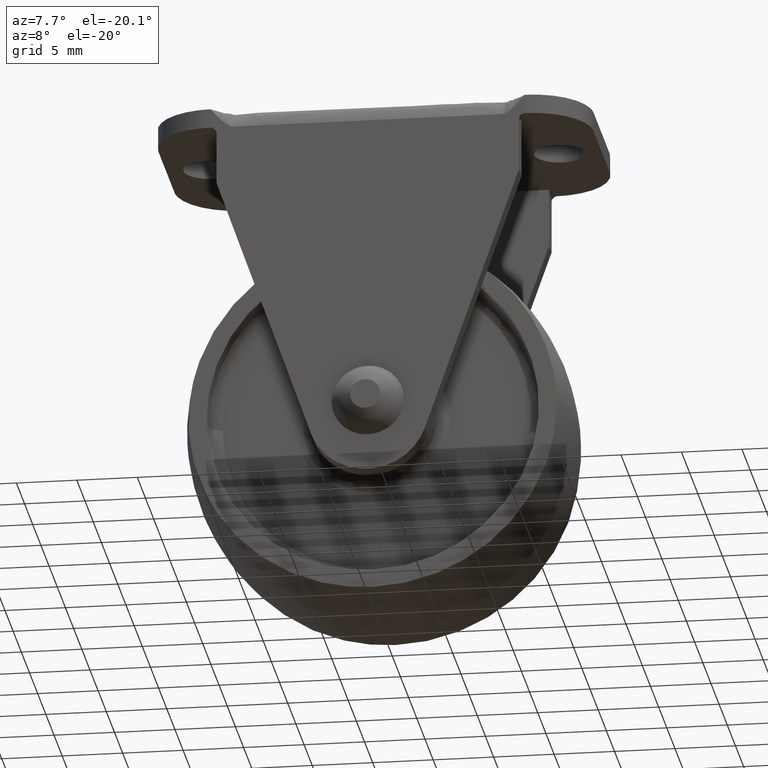
[diagram: clean part render]
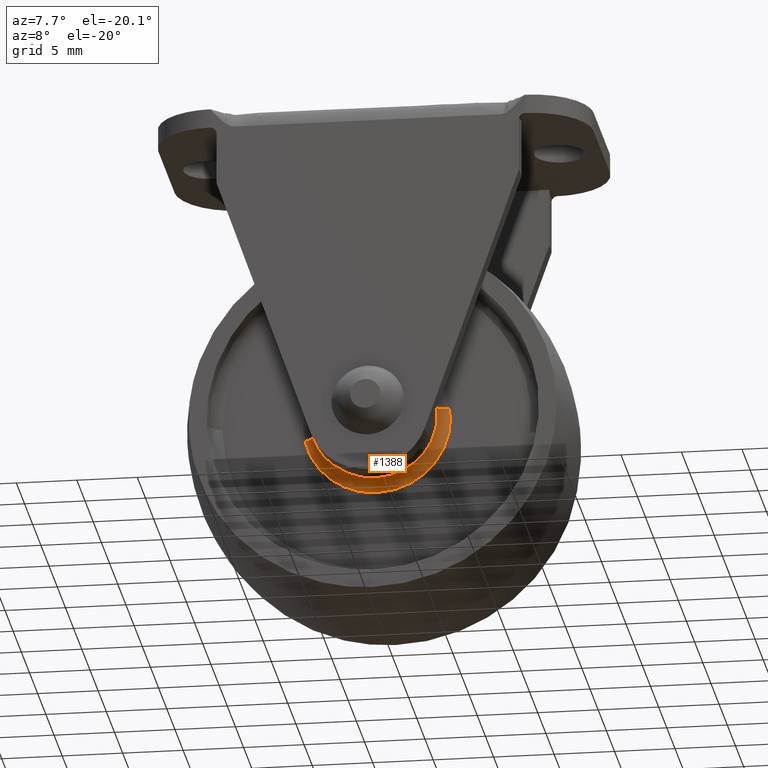
[diagram: same view with one face highlighted and labeled with its STEP entity id]
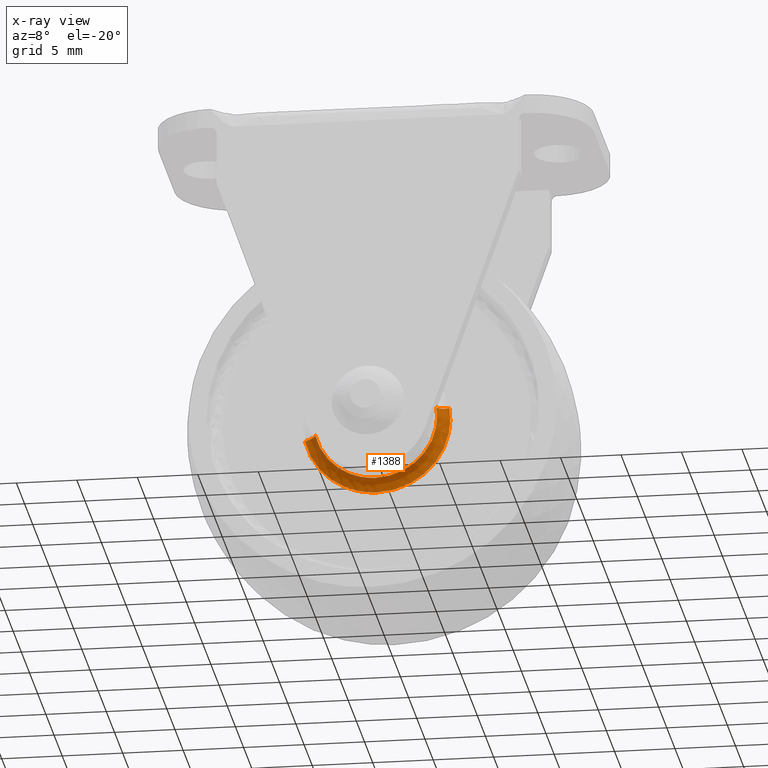
[diagram: x-ray of the same camera — body ghosted, the highlighted face saturated]
A machine part, auxiliary view. The second image highlights one B-rep face of the part: STEP entity #1388.
The next image is the same camera in x-ray: the body ghosted, the highlighted face saturated — about 0% of this face is hidden behind the body in this view.
In plain terms, the highlighted face is a freeform B-spline surface patch.
Its self-contained STEP definition (entity closure, byte-faithful):
#122=CARTESIAN_POINT('',(-4.978266226007286,-5.325867675919231,-1.116302329533333));
#123=VERTEX_POINT('',#122);
#139=CARTESIAN_POINT('',(0.0,-5.325867676252700,-5.101888425605239));
#140=VERTEX_POINT('',#139);
#141=CARTESIAN_POINT('',(-4.978266226007286,-5.325867675919231,-1.116302329533333));
#142=CARTESIAN_POINT('',(-4.084557685298582,-5.325867676252699,-5.101888425605239));
#143=CARTESIAN_POINT('',(0.0,-5.325867676252700,-5.101888425605239));
#151=(BOUNDED_CURVE()B_SPLINE_CURVE(2,(#141,#142,#143),.UNSPECIFIED.,.F.,.U.)B_SPLINE_CURVE_WITH_KNOTS((3,3),(0.787436176726072,1.0),.UNSPECIFIED.)CURVE()GEOMETRIC_REPRESENTATION_ITEM()RATIONAL_B_SPLINE_CURVE((0.925416950444107,0.750965990392022,1.0))REPRESENTATION_ITEM(''));
#152=EDGE_CURVE('',#123,#140,#151,.T.);
#154=CARTESIAN_POINT('',(4.008179143168089,-5.325867676252408,-3.156543277637351));
#155=VERTEX_POINT('',#154);
#156=CARTESIAN_POINT('',(0.0,-5.325867676252700,-5.101888425605239));
#157=CARTESIAN_POINT('',(2.476170235838100,-5.325867676252700,-5.101888425605241));
#158=CARTESIAN_POINT('',(4.008179143168089,-5.325867676252408,-3.156543277637351));
#166=(BOUNDED_CURVE()B_SPLINE_CURVE(2,(#156,#157,#158),.UNSPECIFIED.,.F.,.U.)B_SPLINE_CURVE_WITH_KNOTS((3,3),(0.0,0.142872459110285),.UNSPECIFIED.)CURVE()GEOMETRIC_REPRESENTATION_ITEM()RATIONAL_B_SPLINE_CURVE((1.0,0.832614502285582,0.856547225994026))REPRESENTATION_ITEM(''));
#167=EDGE_CURVE('',#140,#155,#166,.T.);
#213=CARTESIAN_POINT('',(5.033961598497758,-5.325867676014894,0.829756670719595));
#214=VERTEX_POINT('',#213);
#215=CARTESIAN_POINT('',(4.008179143168089,-5.325867676252408,-3.156543277637351));
#216=CARTESIAN_POINT('',(5.101888425605240,-5.325867676252701,-1.767751061288650));
#217=CARTESIAN_POINT('',(5.101888425605240,-5.325867676252700,8.173480E-016));
#218=CARTESIAN_POINT('',(5.101888425605241,-5.325867676252700,0.417658700996241));
#219=CARTESIAN_POINT('',(5.033961598497758,-5.325867676014894,0.829756670719595));
#227=(BOUNDED_CURVE()B_SPLINE_CURVE(2,(#215,#216,#217,#218,#219),.UNSPECIFIED.,.F.,.U.)B_SPLINE_CURVE_WITH_KNOTS((3,2,3),(0.142872459110285,0.250000000000000,0.277993891202610),.UNSPECIFIED.)CURVE()GEOMETRIC_REPRESENTATION_ITEM()RATIONAL_B_SPLINE_CURVE((0.856547225994026,0.874492278900966,1.0,0.967203116394216,0.941751131919991))REPRESENTATION_ITEM(''));
#228=EDGE_CURVE('',#155,#214,#227,.T.);
#1300=CARTESIAN_POINT('',(-4.969428981095087,-5.388629516085768,-1.114320708445350));
#1301=CARTESIAN_POINT('',(-3.917116386922050,-5.388629516085768,-5.807218061085107));
#1302=CARTESIAN_POINT('',(0.828283715530619,-5.388629516085767,-5.025025485109969));
#1303=CARTESIAN_POINT('',(5.853309200640585,-5.388629516085769,-4.196741769579352));
#1304=CARTESIAN_POINT('',(5.025025485109969,-5.388629516085767,0.828283715530622));
#1305=CARTESIAN_POINT('',(-5.072989579673302,-4.441592224831990,-1.137542635957286));
#1306=CARTESIAN_POINT('',(-3.998747278373244,-4.441592224831989,-5.928237796102564));
#1307=CARTESIAN_POINT('',(0.845544764576547,-4.441592224831989,-5.129744689084610));
#1308=CARTESIAN_POINT('',(5.975289453661155,-4.441592224831990,-4.284199924508065));
#1309=CARTESIAN_POINT('',(5.129744689084610,-4.441592224831989,0.845544764576550));
#1310=CARTESIAN_POINT('',(-6.000993480500656,-4.502011914489104,-1.345633740215729));
#1311=CARTESIAN_POINT('',(-4.730239629081383,-4.502011914489104,-7.012692576348653));
#1312=CARTESIAN_POINT('',(1.000220587881060,-4.502011914489103,-6.068130823523599));
#1313=CARTESIAN_POINT('',(7.068351411404658,-4.502011914489103,-5.067910235642542));
#1314=CARTESIAN_POINT('',(6.068130823523600,-4.502011914489103,1.000220587881063));
#1322=(BOUNDED_SURFACE()B_SPLINE_SURFACE(2,2,((#1300,#1305,#1310),(#1301,#1306,#1311),(#1302,#1307,#1312),(#1303,#1308,#1313),(#1304,#1309,#1314)),.UNSPECIFIED.,.F.,.F.,.U.)B_SPLINE_SURFACE_WITH_KNOTS((3,2,3),(3,3),(0.0,9.782087263361440,19.971761496029611),(0.0,1.600711236152248),.UNSPECIFIED.)GEOMETRIC_REPRESENTATION_ITEM()RATIONAL_B_SPLINE_SURFACE(((0.892930283460871,0.646301694307836,0.892614857656810),(0.656628724899493,0.475266955656268,0.656396772139735),(0.913478245074904,0.661174280277538,0.913155560745251),(0.645926661558851,0.467520817130382,0.645698489281171),(0.913478245074904,0.661174280277538,0.913155560745251)))REPRESENTATION_ITEM('')SURFACE());
#1323=ORIENTED_EDGE('',*,*,#152,.F.);
#1324=CARTESIAN_POINT('',(-5.939128003261299,-4.500000000000000,-1.331761324955128));
#1325=VERTEX_POINT('',#1324);
#1326=CARTESIAN_POINT('',(-4.978266226007287,-5.325867675919232,-1.116302329533333));
#1327=CARTESIAN_POINT('',(-5.120768984258672,-4.500000000012192,-1.148256458444579));
#1328=CARTESIAN_POINT('',(-5.939128003261300,-4.500000000000000,-1.331761324955128));
#1336=(BOUNDED_CURVE()B_SPLINE_CURVE(2,(#1326,#1327,#1328),.UNSPECIFIED.,.F.,.U.)B_SPLINE_CURVE_WITH_KNOTS((3,3),(-1.700359679992984,-0.300625565942871),.UNSPECIFIED.)CURVE()GEOMETRIC_REPRESENTATION_ITEM()RATIONAL_B_SPLINE_CURVE((0.871546504163620,0.667671163718063,0.871259698174736))REPRESENTATION_ITEM(''));
#1337=EDGE_CURVE('',#123,#1325,#1336,.T.);
#1338=ORIENTED_EDGE('',*,*,#1337,.T.);
#1339=CARTESIAN_POINT('',(0.0,-4.500000000000000,-6.086610687883469));
#1340=VERTEX_POINT('',#1339);
#1341=CARTESIAN_POINT('',(-5.939128003261299,-4.500000000000000,-1.331761324955129));
#1342=CARTESIAN_POINT('',(-4.872923590087134,-4.500000000000000,-6.086610687883469));
#1343=CARTESIAN_POINT('',(0.0,-4.500000000000000,-6.086610687883469));
#1351=(BOUNDED_CURVE()B_SPLINE_CURVE(2,(#1341,#1342,#1343),.UNSPECIFIED.,.F.,.U.)B_SPLINE_CURVE_WITH_KNOTS((3,3),(0.787436176722802,1.0),.UNSPECIFIED.)CURVE()GEOMETRIC_REPRESENTATION_ITEM()RATIONAL_B_SPLINE_CURVE((0.925416950449475,0.750965990388190,1.0))REPRESENTATION_ITEM(''));
#1352=EDGE_CURVE('',#1325,#1340,#1351,.T.);
#1353=ORIENTED_EDGE('',*,*,#1352,.T.);
#1354=CARTESIAN_POINT('',(6.005573217026194,-4.500000000000000,0.989909111848452));
#1355=VERTEX_POINT('',#1354);
#1356=CARTESIAN_POINT('',(0.0,-4.500000000000000,-6.086610687883469));
#1357=CARTESIAN_POINT('',(6.086610687883469,-4.500000000000000,-6.086610687883468));
#1358=CARTESIAN_POINT('',(6.086610687883470,-4.500000000000000,8.173480E-016));
#1359=CARTESIAN_POINT('',(6.086610687883470,-4.500000000000000,0.498271564985756));
#1360=CARTESIAN_POINT('',(6.005573217026194,-4.500000000000000,0.989909111848452));
#1368=(BOUNDED_CURVE()B_SPLINE_CURVE(2,(#1356,#1357,#1358,#1359,#1360),.UNSPECIFIED.,.F.,.U.)B_SPLINE_CURVE_WITH_KNOTS((3,2,3),(0.0,0.250000000000000,0.277993891381947),.UNSPECIFIED.)CURVE()GEOMETRIC_REPRESENTATION_ITEM()RATIONAL_B_SPLINE_CURVE((1.0,0.707106781186547,1.0,0.967203116184110,0.941751131593886))REPRESENTATION_ITEM(''));
#1369=EDGE_CURVE('',#1340,#1355,#1368,.T.);
#1370=ORIENTED_EDGE('',*,*,#1369,.T.);
#1371=CARTESIAN_POINT('',(5.033961598497758,-5.325867676014894,0.829756670719595));
#1372=CARTESIAN_POINT('',(5.178058636554781,-4.499999993258477,0.853508436808884));
#1373=CARTESIAN_POINT('',(6.005573217026195,-4.500000000000000,0.989909111848452));
#1381=(BOUNDED_CURVE()B_SPLINE_CURVE(2,(#1371,#1372,#1373),.UNSPECIFIED.,.F.,.U.)B_SPLINE_CURVE_WITH_KNOTS((3,3),(-1.700359680204628,-0.300625557173877),.UNSPECIFIED.)CURVE()GEOMETRIC_REPRESENTATION_ITEM()RATIONAL_B_SPLINE_CURVE((0.891602385905369,0.683035498988293,0.891308982531763))REPRESENTATION_ITEM(''));
#1382=EDGE_CURVE('',#214,#1355,#1381,.T.);
#1383=ORIENTED_EDGE('',*,*,#1382,.F.);
#1384=ORIENTED_EDGE('',*,*,#228,.F.);
#1385=ORIENTED_EDGE('',*,*,#167,.F.);
#1386=EDGE_LOOP('',(#1323,#1338,#1353,#1370,#1383,#1384,#1385));
#1387=FACE_OUTER_BOUND('',#1386,.T.);
#1388=ADVANCED_FACE('',(#1387),#1322,.F.);